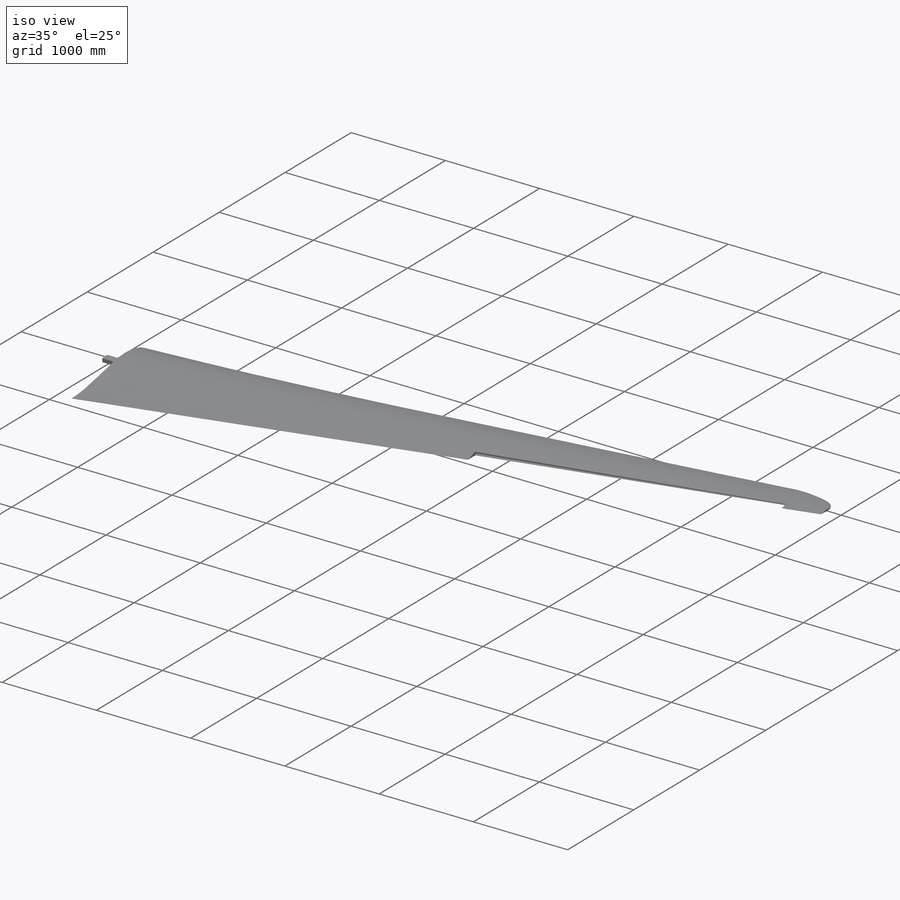
[diagram: iso view]
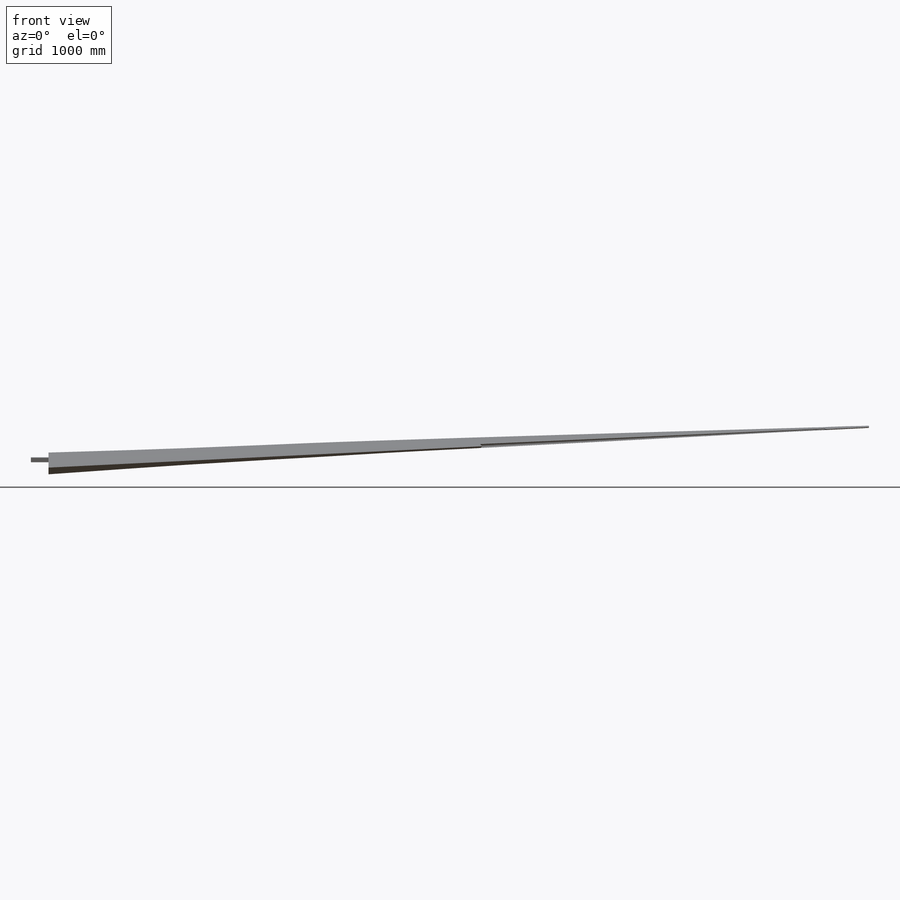
[diagram: front view]
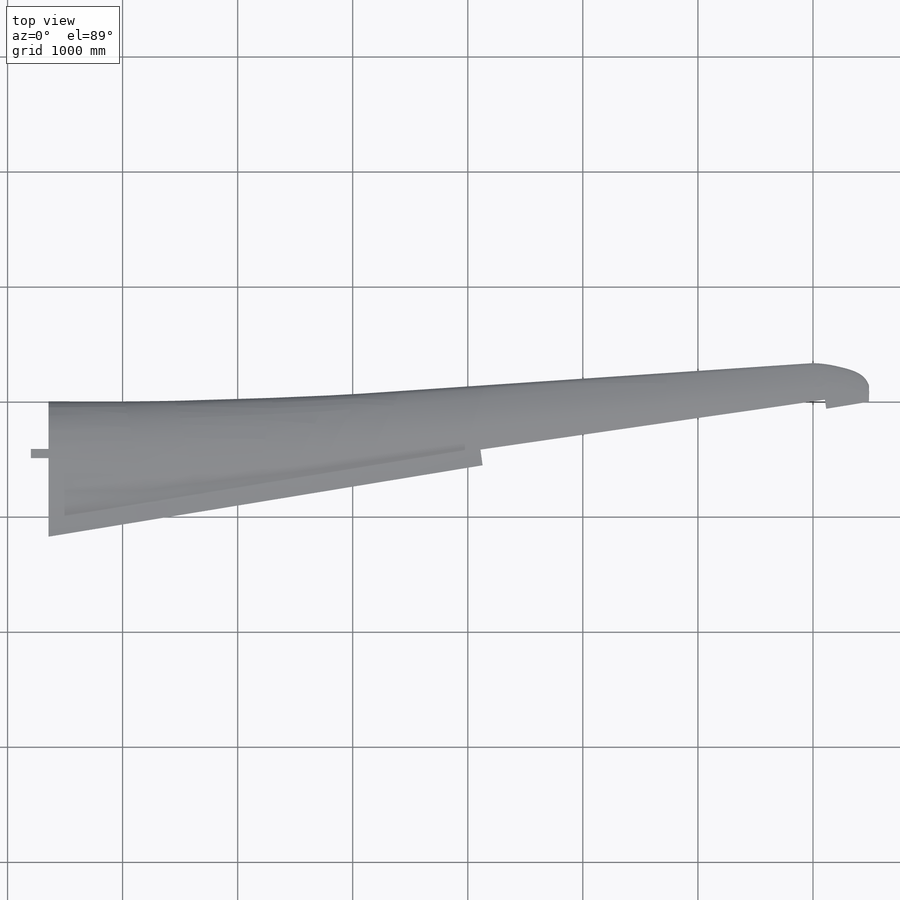
[diagram: top view]
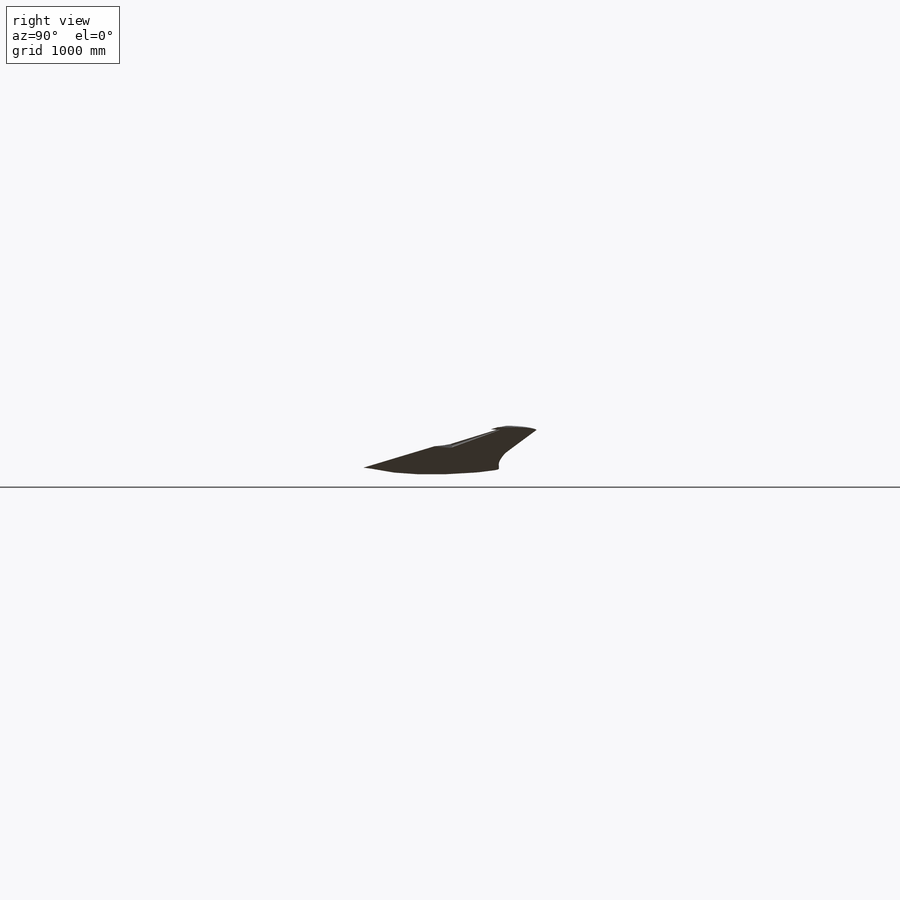
[diagram: right view]
SOLIDWORKS PART (.sldprt)
format: sldprt  version: not decoded by parser v0  size: 4,646,400 bytes
history: native  units: mm
features: sketch x17, plane x5, surface_op x2, chamfer x2, cut_extrude x2, material x1, dome x1, extrude x1 (+11 scaffold rows collapsed)
feature tree (42):
  scaffold x11  (default folders/planes/origin — collapsed)
  material  "Material <not specified>"
  sketch  "Sketch1"  dims[c1.D1=355.6mm c2.D1=177.18deg c2.D2=355.6mm c2.D3=1016.0mm c2.D4=2032.0mm c2.D5=5080.0mm c2.D6=7493.0mm c3.D3=1016.0mm c3.D4=2032.0mm c3.D5=5080.0mm c3.D6=7493.0mm]
  sketch  "Sketch2"
  plane  "Plane1"
  sketch  "Sketch3"  dims[D1=~7499.219653mm]
  plane  "Plane3"
  sketch  "Sketch7"
  plane  "Plane2"
  sketch  "Sketch6"
  sketch  "WingBack"
  sketch  "WingFront"
  plane  "Plane4"
  plane  "Plane5"
  sketch  "Sketch11"
  dome  "Dome1"
  sketch  "Sketch12"  dims[D1=76.2mm D2=762.0mm D3=76.2mm]
  extrude  "Boss-Extrude1"  Depth=152.4mm
  sketch  "Sketch14"
  sketch  "Sketch15"
  surface_op  "Surface-Extrude7"
  surface_op  "Surface-Extrude8"
  sketch  "Sketch16"
  sketch  "Up"
  sketch  "Down"
  sketch  "Sketch19"
  chamfer  "Chamfer1"  Distance=0.762mm Angle=45deg
  chamfer  "Chamfer2"  Distance=0.762mm Angle=45deg
  sketch  "Sketch20"  dims[D1=~1.650917mm]
  cut_extrude  "Cut-Extrude1"  Depth=25.4mm
  sketch  "Sketch23"  dims[D1=~6.297377mm]
  cut_extrude  "Cut-Extrude2"  Depth=25.4mm
decode coverage: 10 of 25 modeling features carry decoded parameters
note: ~ marks probable driven/reference dimensions
note: suppression state not decoded; provenance and decode notes live in map.json
